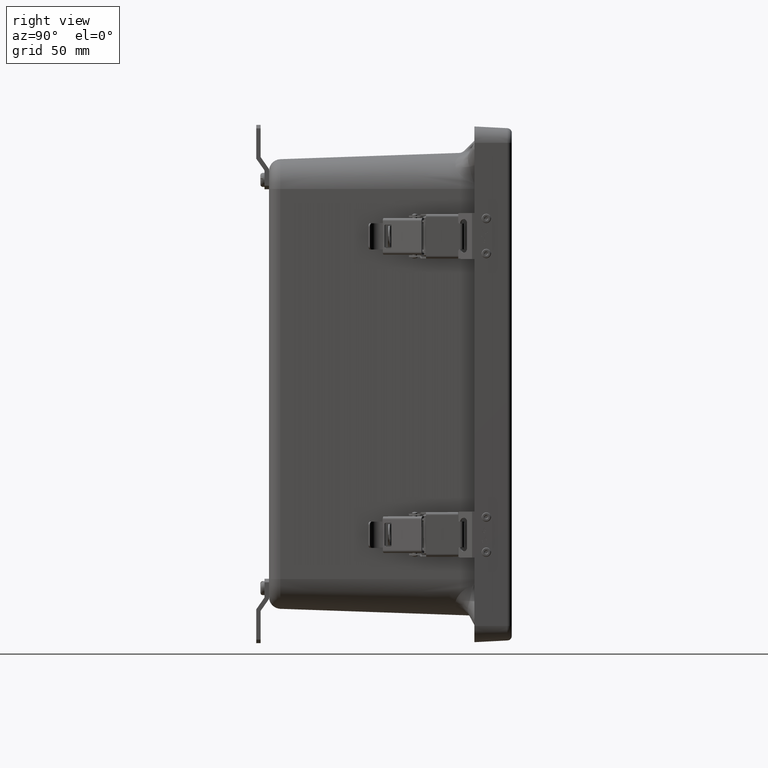
[diagram: clean part render]
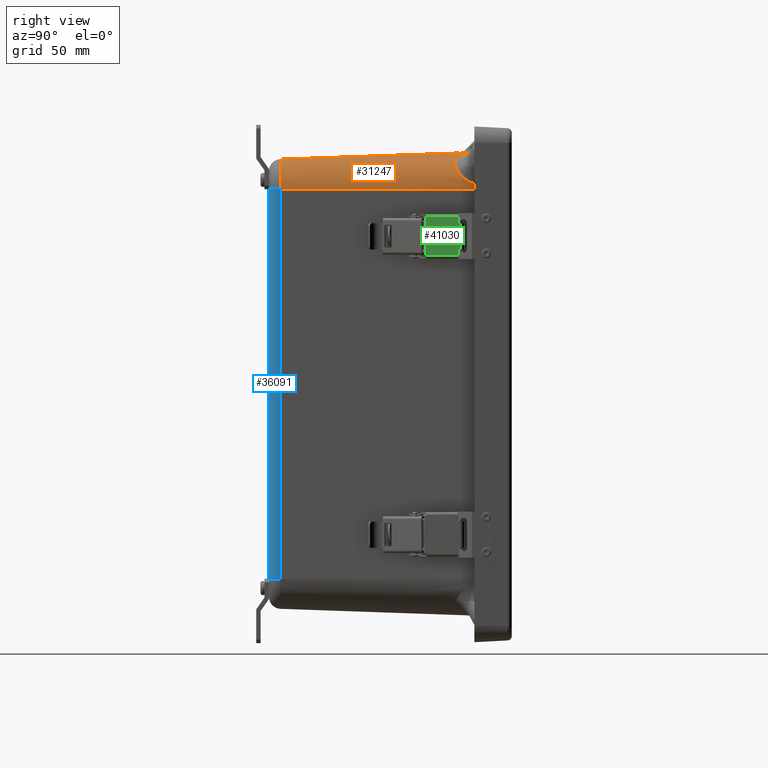
[diagram: same view with three faces highlighted in distinct colors, each labeled with its STEP entity id]
A machine part, right view with three faces highlighted in distinct colors.
Their STEP definitions:

[orange] entity #31247 — the highlighted conical surface has half-angle 2 deg.
#390 = VERTEX_POINT ( 'NONE', #32405 ) ;
#397 = AXIS2_PLACEMENT_3D ( 'NONE', #27810, #40397, #23602 ) ;
#601 = CARTESIAN_POINT ( 'NONE',  ( 4.602543786543456000, -0.9741517219039063100, 6.113739068538891700 ) ) ;
#783 = CARTESIAN_POINT ( 'NONE',  ( 4.414306232075654500, -0.6629292049441603000, 6.173154938143760300 ) ) ;
#932 = CARTESIAN_POINT ( 'NONE',  ( 5.216011673540305300, -0.8122463103060466600, 5.420531861792529300 ) ) ;
#957 = CARTESIAN_POINT ( 'NONE',  ( 4.382323946481234200, -0.8786272661968895800, 6.169900023271134500 ) ) ;
#1119 = CARTESIAN_POINT ( 'NONE',  ( 5.065035571746817800, -1.125027068942627800, 5.743585891069610500 ) ) ;
#1648 = EDGE_LOOP ( 'NONE', ( #2699, #18284, #24836, #4419, #10298, #39318, #41161, #37944, #46246, #47008, #44141, #31006 ) ) ;
#2298 = EDGE_CURVE ( 'NONE', #35946, #35463, #30061, .T. ) ;
#2699 = ORIENTED_EDGE ( 'NONE', *, *, #36088, .F. ) ;
#3161 = CARTESIAN_POINT ( 'NONE',  ( 4.267005768924750700, -5.826576994238372700, 5.206231557718107100 ) ) ;
#3529 = CARTESIAN_POINT ( 'NONE',  ( 4.382239704122073800, -1.055120458396464000, 6.163702558536924100 ) ) ;
#4230 = CIRCLE ( 'NONE', #39559, 0.9863464783968238800 ) ;
#4419 = ORIENTED_EDGE ( 'NONE', *, *, #50028, .T. ) ;
#4619 = CARTESIAN_POINT ( 'NONE',  ( 4.935135117692246900, -1.156178953868235400, 5.896766516832729000 ) ) ;
#4802 = CARTESIAN_POINT ( 'NONE',  ( 4.382239704122073800, -1.055120458396464000, 6.163702558536924100 ) ) ;
#4806 = CARTESIAN_POINT ( 'NONE',  ( 4.537886397126127000, -0.8973695804853796300, 6.137796593640365100 ) ) ;
#5051 = DIRECTION ( 'NONE',  ( -0.0000000000000000000, -1.000000000000000000, -0.0000000000000000000 ) ) ;
#5142 = CARTESIAN_POINT ( 'NONE',  ( 5.205022432039068100, -0.8700360219505101100, 5.457302951866122200 ) ) ;
#5162 = CARTESIAN_POINT ( 'NONE',  ( 4.382263735120528900, -1.004903945736263600, 6.165465906463745100 ) ) ;
#5312 = CARTESIAN_POINT ( 'NONE',  ( 5.035684658112340500, -1.140849108692900700, 5.783882627599940200 ) ) ;
#6270 = VERTEX_POINT ( 'NONE', #15799 ) ;
#7341 = DIRECTION ( 'NONE',  ( 0.0000000000000000000, 0.0000000000000000000, -1.000000000000000000 ) ) ;
#8014 = B_SPLINE_CURVE_WITH_KNOTS ( 'NONE', 3,
 ( #4802, #33882, #8976, #38063 ),
 .UNSPECIFIED., .F., .F.,
 ( 4, 4 ),
 ( 0.0000000000000000000, 0.002940697137949796500 ),
 .UNSPECIFIED. ) ;
#8808 = CARTESIAN_POINT ( 'NONE',  ( 4.831182595780370900, -1.136154228648857300, 5.985050119562689700 ) ) ;
#8976 = CARTESIAN_POINT ( 'NONE',  ( 4.305778957434850600, -1.046567962692868600, 6.170910628505933600 ) ) ;
#8978 = CARTESIAN_POINT ( 'NONE',  ( 4.490120072018916300, -0.8269676317783166700, 6.152684767385305300 ) ) ;
#9165 = EDGE_CURVE ( 'NONE', #48956, #25424, #52322, .T. ) ;
#9192 = DIRECTION ( 'NONE',  ( -0.0000000000000000000, -1.000000000000000000, -0.0000000000000000000 ) ) ;
#9315 = CARTESIAN_POINT ( 'NONE',  ( 5.183253978593119100, -0.9494373749322119200, 5.519528945174058300 ) ) ;
#9334 = CARTESIAN_POINT ( 'NONE',  ( 4.382239704122073800, -1.055120458396464000, 6.163702558536924100 ) ) ;
#9494 = CARTESIAN_POINT ( 'NONE',  ( 4.981790877303570400, -1.156178953868235200, 5.849304050770795600 ) ) ;
#10298 = ORIENTED_EDGE ( 'NONE', *, *, #52222, .T. ) ;
#11185 = CARTESIAN_POINT ( 'NONE',  ( 4.410563175181971800, -0.4260945904174298600, 6.182075114111505300 ) ) ;
#11358 = CARTESIAN_POINT ( 'NONE',  ( 5.242830705040014500, -0.4260945904174298600, 5.349915479927442000 ) ) ;
#12966 = CARTESIAN_POINT ( 'NONE',  ( 4.790764501323618400, -1.118615240153929100, 6.013502680010319100 ) ) ;
#13152 = CARTESIAN_POINT ( 'NONE',  ( 4.464265868317418100, -0.7823113482457804100, 6.159992711328028400 ) ) ;
#13302 = CARTESIAN_POINT ( 'NONE',  ( 5.234544695715669600, -0.6546490925266182900, 5.351375793687705800 ) ) ;
#13475 = CARTESIAN_POINT ( 'NONE',  ( 5.158961739709996100, -1.009029135056755300, 5.577334330219980700 ) ) ;
#15799 = CARTESIAN_POINT ( 'NONE',  ( 5.242830705040014500, -0.4260945904174298600, 5.349915479927442000 ) ) ;
#17117 = CARTESIAN_POINT ( 'NONE',  ( 4.724873620752546800, -1.080393117805169600, 6.054465235708519800 ) ) ;
#17301 = CARTESIAN_POINT ( 'NONE',  ( 4.441391023594671400, -0.7360441960135033500, 6.166071891911583300 ) ) ;
#17473 = CARTESIAN_POINT ( 'NONE',  ( 4.382535130464936500, -0.4260945904174298600, 6.185788775070893300 ) ) ;
#17623 = CARTESIAN_POINT ( 'NONE',  ( 5.141582388841894300, -1.041576327639835300, 5.613960310834309900 ) ) ;
#18284 = ORIENTED_EDGE ( 'NONE', *, *, #30675, .T. ) ;
#19264 = LINE ( 'NONE', #32520, #40149 ) ;
#19655 = CARTESIAN_POINT ( 'NONE',  ( 5.234544695715669600, -0.6546490925266182900, 5.351375793687705800 ) ) ;
#19995 = CARTESIAN_POINT ( 'NONE',  ( 4.412024139284166100, -0.6546490925266189600, 6.173789357722438500 ) ) ;
#20484 = DIRECTION ( 'NONE',  ( -0.0000000000000000000, -1.000000000000000000, -0.0000000000000000000 ) ) ;
#20617 = EDGE_CURVE ( 'NONE', #43840, #22916, #8014, .T. ) ;
#21270 = CARTESIAN_POINT ( 'NONE',  ( 4.674617481258850100, -1.041573439699305000, 6.080862845990298900 ) ) ;
#21451 = CARTESIAN_POINT ( 'NONE',  ( 4.425186722728210700, -0.6959492239110368600, 6.170268605018725000 ) ) ;
#21604 = CARTESIAN_POINT ( 'NONE',  ( 5.228787729387317300, -0.7205323365958654600, 5.373303858918921700 ) ) ;
#21609 = EDGE_CURVE ( 'NONE', #390, #35946, #27437, .T. ) ;
#21623 = CARTESIAN_POINT ( 'NONE',  ( 4.382458039426338400, -0.5928918028036268600, 6.179932667327777900 ) ) ;
#21781 = CARTESIAN_POINT ( 'NONE',  ( 5.115178348680894200, -1.080395079421267100, 5.664212418073717000 ) ) ;
#22679 = B_SPLINE_CURVE_WITH_KNOTS ( 'NONE', 3,
 ( #19995, #44973, #24194, #53296 ),
 .UNSPECIFIED., .F., .F.,
 ( 4, 4 ),
 ( 0.1391324574591374900, 0.1449416728016997300 ),
 .UNSPECIFIED. ) ;
#22916 = VERTEX_POINT ( 'NONE', #52529 ) ;
#22919 = B_SPLINE_CURVE_WITH_KNOTS ( 'NONE', 3,
 ( #11358, #36264, #44640, #19655 ),
 .UNSPECIFIED., .F., .F.,
 ( 4, 4 ),
 ( 0.0000000000000000000, 0.005809216534988679100 ),
 .UNSPECIFIED. ) ;
#23602 = DIRECTION ( 'NONE',  ( 0.0000000000000000000, 0.0000000000000000000, -1.000000000000000000 ) ) ;
#24194 = CARTESIAN_POINT ( 'NONE',  ( 4.411053621604399800, -0.5022794297593340400, 6.179313896773204600 ) ) ;
#24349 = VERTEX_POINT ( 'NONE', #30795 ) ;
#24836 = ORIENTED_EDGE ( 'NONE', *, *, #9165, .T. ) ;
#25081 = CARTESIAN_POINT ( 'NONE',  ( 5.234544695715669600, -0.6546490925266182900, 5.351375793687705800 ) ) ;
#25328 = CARTESIAN_POINT ( 'NONE',  ( 4.909985151847396700, -1.156178953868235400, 5.921100448199490000 ) ) ;
#25424 = VERTEX_POINT ( 'NONE', #47745 ) ;
#25516 = CARTESIAN_POINT ( 'NONE',  ( 4.637988816083726800, -1.009025469109627900, 6.098237471296854100 ) ) ;
#25572 = VERTEX_POINT ( 'NONE', #11185 ) ;
#25699 = CARTESIAN_POINT ( 'NONE',  ( 4.416830699794612500, -0.6713158304039283900, 6.172471809234515700 ) ) ;
#25853 = CARTESIAN_POINT ( 'NONE',  ( 5.220740018508964300, -0.7823198148103101000, 5.403620238163489900 ) ) ;
#25877 = CARTESIAN_POINT ( 'NONE',  ( 4.382371717597253600, -0.7774588375600671700, 6.173452317355644100 ) ) ;
#26027 = CARTESIAN_POINT ( 'NONE',  ( 5.074207505577512700, -1.118616264779968700, 5.730097147876103100 ) ) ;
#27437 = CIRCLE ( 'NONE', #43638, 0.9608513706312290500 ) ;
#27810 = CARTESIAN_POINT ( 'NONE',  ( 4.267005768924750700, 0.004981867010965841100, 5.206231557718107100 ) ) ;
#28311 = VERTEX_POINT ( 'NONE', #25081 ) ;
#28474 = DIRECTION ( 'NONE',  ( 0.0000000000000000000, 0.9993908270190957600, 0.03489949670250104600 ) ) ;
#29277 = VERTEX_POINT ( 'NONE', #34039 ) ;
#29524 = CARTESIAN_POINT ( 'NONE',  ( 4.884167653751152500, -1.152196295192412300, 5.943624465897269900 ) ) ;
#29715 = CARTESIAN_POINT ( 'NONE',  ( 4.580179799640032600, -0.9494324570237124800, 6.122522122334155300 ) ) ;
#29886 = CARTESIAN_POINT ( 'NONE',  ( 4.412024139284166100, -0.6546490925266189600, 6.173789357722438500 ) ) ;
#29944 = CARTESIAN_POINT ( 'NONE',  ( 4.267005768924750700, -0.4260945904174298600, 5.206231557718107100 ) ) ;
#30039 = CARTESIAN_POINT ( 'NONE',  ( 5.213428589249910600, -0.8269751759674205400, 5.429473585544309700 ) ) ;
#30060 = CARTESIAN_POINT ( 'NONE',  ( 4.382275707262316200, -0.9797956888527975500, 6.166347565248703000 ) ) ;
#30061 = B_SPLINE_CURVE_WITH_KNOTS ( 'NONE', 3,
 ( #4619, #25328, #29524, #33711, #8808, #37892, #12966, #42095, #17117, #46259, #21270, #50435, #25516, #601, #29715, #4806, #33883, #8978, #38066, #13152, #42275, #17301, #46436, #21451, #50603, #25699, #783, #29886 ),
 .UNSPECIFIED., .F., .F.,
 ( 4, 2, 2, 2, 2, 2, 2, 2, 2, 2, 2, 2, 2, 4 ),
 ( 0.0000000000000000000, 0.002625011095528484000, 0.003937516643292751800, 0.005250022191057020100, 0.007875033286585482800, 0.009187538834349679900, 0.01050004438211387500, 0.01312505547764227000, 0.01575006657317066000, 0.01706257212093485700, 0.01837507766869905100, 0.01968758321646324100, 0.02034383599034533100, 0.02100008876422742100 ),
 .UNSPECIFIED. ) ;
#30216 = CARTESIAN_POINT ( 'NONE',  ( 5.045749976088166600, -1.136154786945237700, 5.770510973952463400 ) ) ;
#30649 = AXIS2_PLACEMENT_3D ( 'NONE', #3161, #32267, #7341 ) ;
#30675 = EDGE_CURVE ( 'NONE', #24349, #48956, #47011, .T. ) ;
#30795 = CARTESIAN_POINT ( 'NONE',  ( 4.267005768924750700, -5.826576994238370900, 6.003989034946861200 ) ) ;
#30876 = CARTESIAN_POINT ( 'NONE',  ( 4.412024139284166100, -0.6546490925266189600, 6.173789357722438500 ) ) ;
#31006 = ORIENTED_EDGE ( 'NONE', *, *, #20617, .T. ) ;
#31247 = ADVANCED_FACE ( 'NONE', ( #34600 ), #33292, .T. ) ;
#32011 = EDGE_CURVE ( 'NONE', #25572, #29277, #41703, .T. ) ;
#32267 = DIRECTION ( 'NONE',  ( -0.0000000000000000000, 1.000000000000000000, 0.0000000000000000000 ) ) ;
#32405 = CARTESIAN_POINT ( 'NONE',  ( 4.957454030231165400, -1.156178953868235400, 5.874450500058759200 ) ) ;
#32520 = CARTESIAN_POINT ( 'NONE',  ( 4.267005768924750700, 0.004981867010965841100, 6.207631557718108300 ) ) ;
#33292 = CONICAL_SURFACE ( 'NONE', #397, 1.001400000000000500, 0.03490658503988666700 ) ;
#33327 = B_SPLINE_CURVE_WITH_KNOTS ( 'NONE', 3,
 ( #17473, #42446, #21623, #50773, #25877, #957, #30060, #5162, #34242, #9334 ),
 .UNSPECIFIED., .F., .F.,
 ( 4, 3, 3, 4 ),
 ( 0.0000000000000000000, 0.006358890000053907300, 0.01407267589085720200, 0.01598710445071471800 ),
 .UNSPECIFIED. ) ;
#33711 = CARTESIAN_POINT ( 'NONE',  ( 4.844555767048185600, -1.140848683980276100, 5.974986414120298400 ) ) ;
#33882 = CARTESIAN_POINT ( 'NONE',  ( 4.344186357789735300, -1.049449494181663700, 6.168481833700756300 ) ) ;
#33883 = CARTESIAN_POINT ( 'NONE',  ( 4.517950593146747600, -0.8700294280540652500, 6.144282328349801100 ) ) ;
#34039 = CARTESIAN_POINT ( 'NONE',  ( 4.382535130464936500, -0.4260945904174298600, 6.185788775070893300 ) ) ;
#34096 = CARTESIAN_POINT ( 'NONE',  ( 4.267005768924750700, -0.4260945904174298600, 5.206231557718107100 ) ) ;
#34120 = DIRECTION ( 'NONE',  ( 1.495618374363177000E-014, 0.0000000000000000000, 1.000000000000000000 ) ) ;
#34218 = CARTESIAN_POINT ( 'NONE',  ( 5.198534046067908100, -0.8973755949976269800, 5.477237807188236800 ) ) ;
#34242 = CARTESIAN_POINT ( 'NONE',  ( 4.382251734143599400, -1.030012202251404000, 6.164584237580474000 ) ) ;
#34399 = CARTESIAN_POINT ( 'NONE',  ( 5.004317948719868300, -1.152196406937384900, 5.823489853560178500 ) ) ;
#34576 = AXIS2_PLACEMENT_3D ( 'NONE', #34096, #9192, #38277 ) ;
#34600 = FACE_OUTER_BOUND ( 'NONE', #1648, .T. ) ;
#34838 = EDGE_CURVE ( 'NONE', #28311, #390, #39429, .T. ) ;
#35463 = VERTEX_POINT ( 'NONE', #30876 ) ;
#35946 = VERTEX_POINT ( 'NONE', #52664 ) ;
#36088 = EDGE_CURVE ( 'NONE', #24349, #22916, #19264, .T. ) ;
#36264 = CARTESIAN_POINT ( 'NONE',  ( 5.240069403312049600, -0.5022794283426415000, 5.350405710141986400 ) ) ;
#37892 = CARTESIAN_POINT ( 'NONE',  ( 4.804254629139156100, -1.125026215488260400, 6.004332411160335800 ) ) ;
#37944 = ORIENTED_EDGE ( 'NONE', *, *, #2298, .T. ) ;
#38063 = CARTESIAN_POINT ( 'NONE',  ( 4.267005768924750700, -1.046567962692867900, 6.170910628505934500 ) ) ;
#38066 = CARTESIAN_POINT ( 'NONE',  ( 4.481178020623533900, -0.8122384536487733400, 6.155266650227766900 ) ) ;
#38214 = CARTESIAN_POINT ( 'NONE',  ( 5.231978556129212700, -0.6881253338640548300, 5.360601894050539300 ) ) ;
#38277 = DIRECTION ( 'NONE',  ( 6.204046589950955700E-014, 0.0000000000000000000, 1.000000000000000000 ) ) ;
#38299 = EDGE_CURVE ( 'NONE', #35463, #25572, #22679, .T. ) ;
#38401 = CARTESIAN_POINT ( 'NONE',  ( 5.174467979001534900, -0.9741561236410774000, 5.541891615619817900 ) ) ;
#38577 = CARTESIAN_POINT ( 'NONE',  ( 4.957454030231165400, -1.156178953868235400, 5.874450500058759200 ) ) ;
#39318 = ORIENTED_EDGE ( 'NONE', *, *, #34838, .T. ) ;
#39429 = B_SPLINE_CURVE_WITH_KNOTS ( 'NONE', 3,
 ( #13302, #38214, #21604, #50753, #25853, #932, #30039, #5142, #34218, #9315, #38401, #13475, #42596, #17623, #46767, #21781, #50925, #26027, #1119, #30216, #5312, #34399, #9494, #38577 ),
 .UNSPECIFIED., .F., .F.,
 ( 4, 2, 2, 2, 2, 2, 2, 2, 2, 2, 2, 4 ),
 ( -2.764305167540521600E-005, 0.002625566905362707700, 0.003952171883881786300, 0.005278776862400865800, 0.007931986819438973500, 0.01058519677647708400, 0.01191180175499612300, 0.01323840673351516000, 0.01589161669055323700, 0.01721822166907230700, 0.01854482664759138000, 0.02119803660462940600 ),
 .UNSPECIFIED. ) ;
#39559 = AXIS2_PLACEMENT_3D ( 'NONE', #29944, #5051, #34120 ) ;
#40149 = VECTOR ( 'NONE', #28474, 39.37007874015748900 ) ;
#40397 = DIRECTION ( 'NONE',  ( 0.0000000000000000000, 1.000000000000000000, 0.0000000000000000000 ) ) ;
#41048 = CARTESIAN_POINT ( 'NONE',  ( 5.064763246153503900, -5.826576994238370900, 5.206231557718107100 ) ) ;
#41140 = CARTESIAN_POINT ( 'NONE',  ( 5.268405768924751000, 0.004981867010965803000, 5.206231557718107100 ) ) ;
#41161 = ORIENTED_EDGE ( 'NONE', *, *, #21609, .T. ) ;
#41307 = VECTOR ( 'NONE', #43379, 39.37007874015748900 ) ;
#41703 = CIRCLE ( 'NONE', #34576, 0.9863464783968238800 ) ;
#42095 = CARTESIAN_POINT ( 'NONE',  ( 4.750786006950541200, -1.097293214954294000, 6.039391757261114400 ) ) ;
#42275 = CARTESIAN_POINT ( 'NONE',  ( 4.456275431457110700, -0.7670874949894773700, 6.162143066040745700 ) ) ;
#42446 = CARTESIAN_POINT ( 'NONE',  ( 4.382496735844632100, -0.5094931985500131800, 6.182860774472362500 ) ) ;
#42596 = CARTESIAN_POINT ( 'NONE',  ( 5.153405550590711000, -1.020261900023583100, 5.589453808279506200 ) ) ;
#43379 = DIRECTION ( 'NONE',  ( 0.03489949670250104600, 0.9993908270190957600, 0.0000000000000000000 ) ) ;
#43638 = AXIS2_PLACEMENT_3D ( 'NONE', #45487, #20484, #49641 ) ;
#43840 = VERTEX_POINT ( 'NONE', #3529 ) ;
#44141 = ORIENTED_EDGE ( 'NONE', *, *, #50560, .T. ) ;
#44640 = CARTESIAN_POINT ( 'NONE',  ( 5.237307398951772400, -0.5784642622486775300, 5.350892495019978800 ) ) ;
#44973 = CARTESIAN_POINT ( 'NONE',  ( 4.411540623260712800, -0.5784642636707028100, 6.176551976726074100 ) ) ;
#45487 = CARTESIAN_POINT ( 'NONE',  ( 4.267005768924750700, -1.156178953868233000, 5.206231557718107100 ) ) ;
#46246 = ORIENTED_EDGE ( 'NONE', *, *, #38299, .T. ) ;
#46259 = CARTESIAN_POINT ( 'NONE',  ( 4.687049778967791600, -1.051700206429541300, 6.074578715913105500 ) ) ;
#46436 = CARTESIAN_POINT ( 'NONE',  ( 4.434495686073557200, -0.7202254299751024200, 6.167850361426682000 ) ) ;
#46767 = CARTESIAN_POINT ( 'NONE',  ( 5.135296662693629200, -1.051702853595313700, 5.626391644851466400 ) ) ;
#47008 = ORIENTED_EDGE ( 'NONE', *, *, #32011, .T. ) ;
#47011 = CIRCLE ( 'NONE', #30649, 0.7977574772287530100 ) ;
#47745 = CARTESIAN_POINT ( 'NONE',  ( 5.253352247321574400, -0.4260945904174298600, 5.206231557718107100 ) ) ;
#48956 = VERTEX_POINT ( 'NONE', #41048 ) ;
#49641 = DIRECTION ( 'NONE',  ( 0.0000000000000000000, 0.0000000000000000000, -1.000000000000000000 ) ) ;
#50028 = EDGE_CURVE ( 'NONE', #25424, #6270, #4230, .T. ) ;
#50435 = CARTESIAN_POINT ( 'NONE',  ( 4.650109158666923600, -1.020258506283639600, 6.092682848836088500 ) ) ;
#50560 = EDGE_CURVE ( 'NONE', #29277, #43840, #33327, .T. ) ;
#50603 = CARTESIAN_POINT ( 'NONE',  ( 4.422264504430875000, -0.6877824810580576200, 6.171031165747642400 ) ) ;
#50753 = CARTESIAN_POINT ( 'NONE',  ( 5.222891455332228500, -0.7670962785082966500, 5.395630014340201600 ) ) ;
#50773 = CARTESIAN_POINT ( 'NONE',  ( 4.382419033979186200, -0.6762904030952302500, 6.177004451474990900 ) ) ;
#50925 = CARTESIAN_POINT ( 'NONE',  ( 5.100101587213098100, -1.097294767919146000, 5.690122524318443500 ) ) ;
#52222 = EDGE_CURVE ( 'NONE', #6270, #28311, #22919, .T. ) ;
#52322 = LINE ( 'NONE', #41140, #41307 ) ;
#52529 = CARTESIAN_POINT ( 'NONE',  ( 4.267005768924750700, -1.046567962692867900, 6.170910628505934500 ) ) ;
#52664 = CARTESIAN_POINT ( 'NONE',  ( 4.935135117692246900, -1.156178953868235400, 5.896766516832729000 ) ) ;
#53296 = CARTESIAN_POINT ( 'NONE',  ( 4.410563175181971800, -0.4260945904174298600, 6.182075114111505300 ) ) ;

[blue] entity #36091 — the highlighted cylindrical surface (edge-blend (fillet) strip) has radius 7.9486 mm, axis along (0, 0, -1).
#1126 = ORIENTED_EDGE ( 'NONE', *, *, #8289, .F. ) ;
#2160 = EDGE_CURVE ( 'NONE', #25838, #13249, #7081, .T. ) ;
#4054 = AXIS2_PLACEMENT_3D ( 'NONE', #45072, #11951, #41047 ) ;
#6249 = LINE ( 'NONE', #46601, #27047 ) ;
#7019 = CARTESIAN_POINT ( 'NONE',  ( 4.752016379223213100, -6.128593132989035300, 5.206231557718107100 ) ) ;
#7081 = CIRCLE ( 'NONE', #37806, 0.3129374999999997600 ) ;
#8289 = EDGE_CURVE ( 'NONE', #48956, #13249, #6249, .T. ) ;
#11951 = DIRECTION ( 'NONE',  ( 0.0000000000000000000, 0.0000000000000000000, -1.000000000000000000 ) ) ;
#13249 = VERTEX_POINT ( 'NONE', #43505 ) ;
#14786 = DIRECTION ( 'NONE',  ( 0.0000000000000000000, 0.0000000000000000000, -1.000000000000000000 ) ) ;
#16040 = CARTESIAN_POINT ( 'NONE',  ( 4.752016379223213100, -5.815655632989034100, -5.206325642281891300 ) ) ;
#20184 = DIRECTION ( 'NONE',  ( 1.000000000000000000, 0.0000000000000000000, 0.0000000000000000000 ) ) ;
#23154 = LINE ( 'NONE', #7019, #52432 ) ;
#25685 = DIRECTION ( 'NONE',  ( 0.0000000000000000000, 0.0000000000000000000, -1.000000000000000000 ) ) ;
#25838 = VERTEX_POINT ( 'NONE', #38418 ) ;
#25971 = EDGE_LOOP ( 'NONE', ( #50264, #36427, #26134, #1126 ) ) ;
#26134 = ORIENTED_EDGE ( 'NONE', *, *, #2160, .T. ) ;
#27047 = VECTOR ( 'NONE', #25685, 39.37007874015748100 ) ;
#30107 = CIRCLE ( 'NONE', #53966, 0.3129374999999997600 ) ;
#30511 = EDGE_CURVE ( 'NONE', #48956, #50444, #30107, .T. ) ;
#36091 = ADVANCED_FACE ( 'NONE', ( #41452 ), #49901, .T. ) ;
#36427 = ORIENTED_EDGE ( 'NONE', *, *, #47736, .F. ) ;
#37806 = AXIS2_PLACEMENT_3D ( 'NONE', #16040, #45186, #20184 ) ;
#38418 = CARTESIAN_POINT ( 'NONE',  ( 4.752016379223213100, -6.128593132989035300, -5.206325642281891300 ) ) ;
#39731 = CARTESIAN_POINT ( 'NONE',  ( 4.752016379223215700, -5.815655632989034100, 5.206231557718107100 ) ) ;
#41047 = DIRECTION ( 'NONE',  ( -1.000000000000000000, 0.0000000000000000000, 0.0000000000000000000 ) ) ;
#41048 = CARTESIAN_POINT ( 'NONE',  ( 5.064763246153503900, -5.826576994238370900, 5.206231557718107100 ) ) ;
#41452 = FACE_OUTER_BOUND ( 'NONE', #25971, .T. ) ;
#43505 = CARTESIAN_POINT ( 'NONE',  ( 5.064763246153503000, -5.826576994238370900, -5.206325642281891300 ) ) ;
#43921 = DIRECTION ( 'NONE',  ( -1.000000000000000000, 0.0000000000000000000, 0.0000000000000000000 ) ) ;
#45072 = CARTESIAN_POINT ( 'NONE',  ( 4.752016379223213100, -5.815655632989034100, 5.206231557718107100 ) ) ;
#45186 = DIRECTION ( 'NONE',  ( 0.0000000000000000000, 0.0000000000000000000, 1.000000000000000000 ) ) ;
#46601 = CARTESIAN_POINT ( 'NONE',  ( 5.064763246153503000, -5.826576994238372700, 5.206231557718107100 ) ) ;
#47736 = EDGE_CURVE ( 'NONE', #25838, #50444, #23154, .T. ) ;
#48655 = DIRECTION ( 'NONE',  ( -0.0000000000000000000, -0.0000000000000000000, 1.000000000000000000 ) ) ;
#48956 = VERTEX_POINT ( 'NONE', #41048 ) ;
#49893 = CARTESIAN_POINT ( 'NONE',  ( 4.752016379223215700, -6.128593132989035300, 5.206231557718107100 ) ) ;
#49901 = CYLINDRICAL_SURFACE ( 'NONE', #4054, 0.3129374999999997600 ) ;
#50264 = ORIENTED_EDGE ( 'NONE', *, *, #30511, .T. ) ;
#50444 = VERTEX_POINT ( 'NONE', #49893 ) ;
#52432 = VECTOR ( 'NONE', #48655, 39.37007874015748100 ) ;
#53966 = AXIS2_PLACEMENT_3D ( 'NONE', #39731, #14786, #43921 ) ;

[green] entity #41030 — the highlighted planar face has unit normal (-0.9994, 0.0337, 0).
#614 = CARTESIAN_POINT ( 'NONE',  ( -1.226999999999999900, 0.3980000000000000200, 0.3449999999999999200 ) ) ;
#902 = DIRECTION ( 'NONE',  ( 0.0000000000000000000, -1.000000000000000000, 3.480061138425813700E-015 ) ) ;
#1123 = EDGE_CURVE ( 'NONE', #4051, #29880, #31240, .T. ) ;
#1398 = CARTESIAN_POINT ( 'NONE',  ( -1.174999999999999800, 0.3980000000000000800, -0.5195000000000001800 ) ) ;
#1619 = ORIENTED_EDGE ( 'NONE', *, *, #11462, .T. ) ;
#2349 = CARTESIAN_POINT ( 'NONE',  ( -1.174999999999999800, 0.3980000000000018500, -1.571167512499221700E-016 ) ) ;
#3857 = EDGE_CURVE ( 'NONE', #46795, #47567, #11092, .T. ) ;
#4051 = VERTEX_POINT ( 'NONE', #48174 ) ;
#4098 = DIRECTION ( 'NONE',  ( -0.0000000000000000000, -0.0000000000000000000, -1.000000000000000000 ) ) ;
#4639 = CARTESIAN_POINT ( 'NONE',  ( -1.204999999999999800, 0.3980000000000005800, -0.3749999999999999400 ) ) ;
#5218 = VERTEX_POINT ( 'NONE', #50951 ) ;
#6335 = CIRCLE ( 'NONE', #39593, 0.03000000000000002300 ) ;
#6863 = ORIENTED_EDGE ( 'NONE', *, *, #51754, .T. ) ;
#6892 = CARTESIAN_POINT ( 'NONE',  ( -0.3149999999999998900, 0.3980000000000037400, 0.5194999999999974100 ) ) ;
#8829 = DIRECTION ( 'NONE',  ( 0.0000000000000000000, -4.553079989440435100E-015, -1.000000000000000000 ) ) ;
#9118 = DIRECTION ( 'NONE',  ( -1.242878978009219200E-016, -3.480061138425814000E-015, -1.000000000000000000 ) ) ;
#9247 = CARTESIAN_POINT ( 'NONE',  ( -1.204999999999999800, 0.3980000000000000200, 0.3449999999999999200 ) ) ;
#10033 = CARTESIAN_POINT ( 'NONE',  ( -0.3149999999999998900, 0.3980000000000018500, -1.571167512499221700E-016 ) ) ;
#10241 = VECTOR ( 'NONE', #35990, 39.37007874015748100 ) ;
#10279 = VERTEX_POINT ( 'NONE', #1398 ) ;
#11092 = LINE ( 'NONE', #42586, #52682 ) ;
#11462 = EDGE_CURVE ( 'NONE', #50774, #46795, #42126, .T. ) ;
#11669 = ORIENTED_EDGE ( 'NONE', *, *, #35772, .T. ) ;
#11945 = DIRECTION ( 'NONE',  ( 1.000000000000000000, 0.0000000000000000000, 0.0000000000000000000 ) ) ;
#12996 = VERTEX_POINT ( 'NONE', #25121 ) ;
#13905 = LINE ( 'NONE', #35489, #34746 ) ;
#14626 = ORIENTED_EDGE ( 'NONE', *, *, #42634, .T. ) ;
#14629 = VECTOR ( 'NONE', #23206, 39.37007874015748100 ) ;
#16390 = VECTOR ( 'NONE', #40135, 39.37007874015748100 ) ;
#16421 = CARTESIAN_POINT ( 'NONE',  ( -1.226999999999999900, 0.3980000000000000200, -0.3449999999999999200 ) ) ;
#16495 = ORIENTED_EDGE ( 'NONE', *, *, #29467, .F. ) ;
#17014 = EDGE_CURVE ( 'NONE', #4051, #22241, #39775, .T. ) ;
#19242 = CARTESIAN_POINT ( 'NONE',  ( -1.174999999999999800, 0.3980000000000037400, 0.5194999999999974100 ) ) ;
#19724 = CIRCLE ( 'NONE', #42314, 0.03000000000000002300 ) ;
#20124 = LINE ( 'NONE', #32694, #50769 ) ;
#20903 = ORIENTED_EDGE ( 'NONE', *, *, #3857, .T. ) ;
#22241 = VERTEX_POINT ( 'NONE', #50312 ) ;
#22500 = DIRECTION ( 'NONE',  ( 0.0000000000000000000, -1.000000000000000000, 3.480061138425814000E-015 ) ) ;
#23206 = DIRECTION ( 'NONE',  ( -0.0000000000000000000, 3.480061138425814000E-015, 1.000000000000000000 ) ) ;
#24820 = ORIENTED_EDGE ( 'NONE', *, *, #17014, .F. ) ;
#25121 = CARTESIAN_POINT ( 'NONE',  ( -1.174999999999999800, 0.3980000000000031800, 0.3749999999999998300 ) ) ;
#25713 = LINE ( 'NONE', #2349, #14629 ) ;
#25754 = CARTESIAN_POINT ( 'NONE',  ( -0.3149999999999998900, 0.3980000000000000800, -0.5195000000000002900 ) ) ;
#25831 = CARTESIAN_POINT ( 'NONE',  ( -1.204999999999999800, 0.3980000000000031800, 0.3749999999999999400 ) ) ;
#28530 = CARTESIAN_POINT ( 'NONE',  ( -0.3149999999999998900, 0.3980000000000037400, 0.5194999999999975200 ) ) ;
#28681 = VECTOR ( 'NONE', #4098, 39.37007874015748100 ) ;
#29467 = EDGE_CURVE ( 'NONE', #22241, #5218, #13905, .T. ) ;
#29732 = DIRECTION ( 'NONE',  ( 1.000000000000000000, -0.0000000000000000000, -0.0000000000000000000 ) ) ;
#29880 = VERTEX_POINT ( 'NONE', #9247 ) ;
#30008 = DIRECTION ( 'NONE',  ( 0.0000000000000000000, -4.553079989440435100E-015, -1.000000000000000000 ) ) ;
#31240 = LINE ( 'NONE', #614, #43615 ) ;
#31296 = DIRECTION ( 'NONE',  ( 1.000000000000000000, -0.0000000000000000000, -0.0000000000000000000 ) ) ;
#31828 = ORIENTED_EDGE ( 'NONE', *, *, #45376, .F. ) ;
#32694 = CARTESIAN_POINT ( 'NONE',  ( -0.3149999999999998900, 0.3980000000000000800, -0.5195000000000001800 ) ) ;
#33639 = ORIENTED_EDGE ( 'NONE', *, *, #1123, .T. ) ;
#33733 = DIRECTION ( 'NONE',  ( 0.0000000000000000000, -1.000000000000000000, 3.480061138425813700E-015 ) ) ;
#34746 = VECTOR ( 'NONE', #31296, 39.37007874015748100 ) ;
#35489 = CARTESIAN_POINT ( 'NONE',  ( -1.226999999999999900, 0.3980000000000000200, -0.3449999999999999200 ) ) ;
#35772 = EDGE_CURVE ( 'NONE', #29880, #12996, #6335, .T. ) ;
#35990 = DIRECTION ( 'NONE',  ( 1.000000000000000000, 0.0000000000000000000, 0.0000000000000000000 ) ) ;
#38563 = LINE ( 'NONE', #52447, #16390 ) ;
#39593 = AXIS2_PLACEMENT_3D ( 'NONE', #25831, #902, #30008 ) ;
#39775 = LINE ( 'NONE', #16421, #28681 ) ;
#40095 = FACE_OUTER_BOUND ( 'NONE', #49816, .T. ) ;
#40135 = DIRECTION ( 'NONE',  ( -0.0000000000000000000, 3.480061138425814000E-015, 1.000000000000000000 ) ) ;
#40177 = ORIENTED_EDGE ( 'NONE', *, *, #48816, .T. ) ;
#41030 = ADVANCED_FACE ( 'NONE', ( #40095 ), #47290, .F. ) ;
#42126 = LINE ( 'NONE', #6892, #10241 ) ;
#42314 = AXIS2_PLACEMENT_3D ( 'NONE', #4639, #33733, #8829 ) ;
#42477 = VERTEX_POINT ( 'NONE', #51923 ) ;
#42586 = CARTESIAN_POINT ( 'NONE',  ( -0.3150000000000000000, 0.3979999999999999600, -0.5495000000000001000 ) ) ;
#42634 = EDGE_CURVE ( 'NONE', #42477, #5218, #19724, .T. ) ;
#43615 = VECTOR ( 'NONE', #29732, 39.37007874015748100 ) ;
#45376 = EDGE_CURVE ( 'NONE', #10279, #47567, #20124, .T. ) ;
#46795 = VERTEX_POINT ( 'NONE', #28530 ) ;
#47290 = PLANE ( 'NONE',  #49524 ) ;
#47567 = VERTEX_POINT ( 'NONE', #25754 ) ;
#48174 = CARTESIAN_POINT ( 'NONE',  ( -1.226999999999999900, 0.3980000000000000200, 0.3449999999999999200 ) ) ;
#48816 = EDGE_CURVE ( 'NONE', #12996, #50774, #25713, .T. ) ;
#49524 = AXIS2_PLACEMENT_3D ( 'NONE', #10033, #22500, #51638 ) ;
#49816 = EDGE_LOOP ( 'NONE', ( #31828, #6863, #14626, #16495, #24820, #33639, #11669, #40177, #1619, #20903 ) ) ;
#50312 = CARTESIAN_POINT ( 'NONE',  ( -1.226999999999999900, 0.3979999999999988000, -0.3450000000000003100 ) ) ;
#50769 = VECTOR ( 'NONE', #11945, 39.37007874015748100 ) ;
#50774 = VERTEX_POINT ( 'NONE', #19242 ) ;
#50951 = CARTESIAN_POINT ( 'NONE',  ( -1.204999999999999800, 0.3980000000000000200, -0.3449999999999999200 ) ) ;
#51638 = DIRECTION ( 'NONE',  ( 0.0000000000000000000, -3.480061138425814000E-015, -1.000000000000000000 ) ) ;
#51754 = EDGE_CURVE ( 'NONE', #10279, #42477, #38563, .T. ) ;
#51923 = CARTESIAN_POINT ( 'NONE',  ( -1.174999999999999800, 0.3980000000000005800, -0.3749999999999998300 ) ) ;
#52447 = CARTESIAN_POINT ( 'NONE',  ( -1.174999999999999800, 0.3980000000000018500, -1.571167512499221700E-016 ) ) ;
#52682 = VECTOR ( 'NONE', #9118, 39.37007874015748100 ) ;